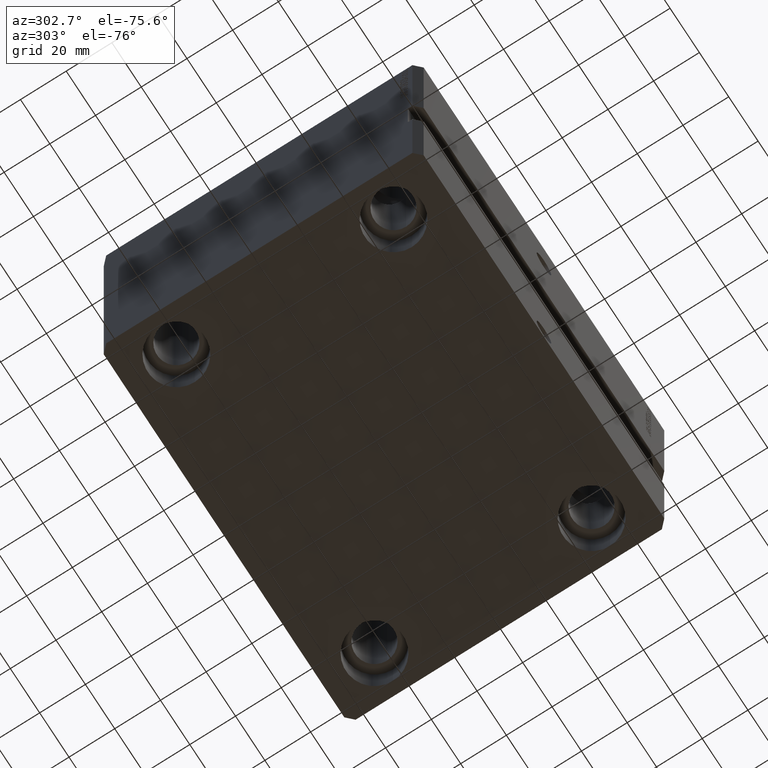
[diagram: clean part render]
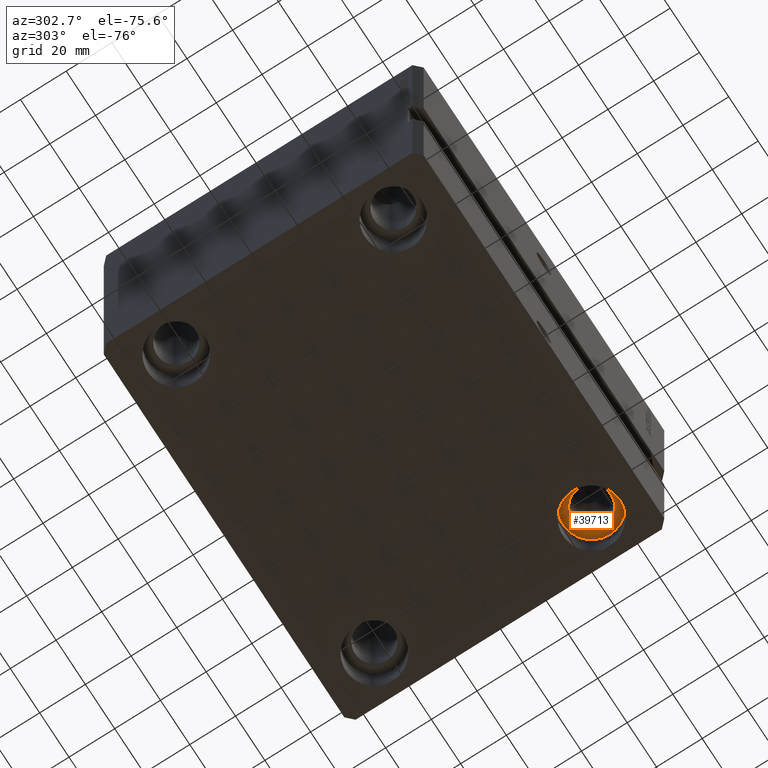
[diagram: same view with one face highlighted and labeled with its STEP entity id]
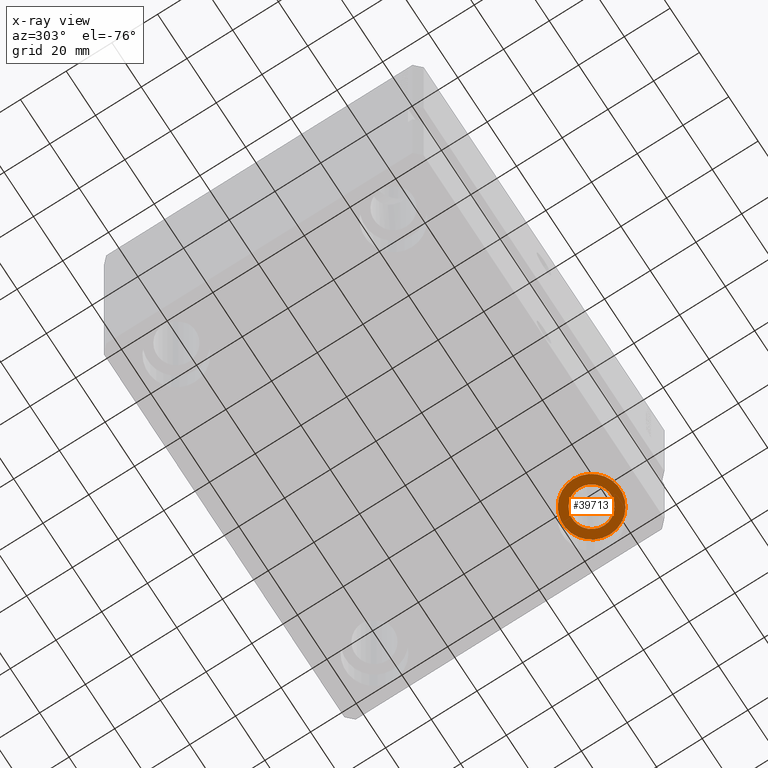
[diagram: x-ray of the same camera — body ghosted, the highlighted face saturated]
A machine part, auxiliary view. The second image highlights one B-rep face of the part: STEP entity #39713.
The next image is the same camera in x-ray: the body ghosted, the highlighted face saturated — about 0% of this face is hidden behind the body in this view.
In plain terms, the highlighted planar face has unit normal (0, 0, -1).
Its self-contained STEP definition (entity closure, byte-faithful):
#1642 = DIRECTION ( 'NONE',  ( 0.000000000000000000, 0.000000000000000000, -1.000000000000000000 ) ) ;
#1998 = AXIS2_PLACEMENT_3D ( 'NONE', #29819, #1642, #36987 ) ;
#3365 = CARTESIAN_POINT ( 'NONE',  ( 80.00000000000000000, -47.50000000000000000, -113.0000000000000000 ) ) ;
#4177 = VERTEX_POINT ( 'NONE', #4906 ) ;
#4906 = CARTESIAN_POINT ( 'NONE',  ( 55.00000000000000711, -47.50000000000000000, -113.0000000000000000 ) ) ;
#4964 = AXIS2_PLACEMENT_3D ( 'NONE', #5495, #30195, #44314 ) ;
#5158 = CARTESIAN_POINT ( 'NONE',  ( 76.00000000000001421, -47.50000000000000000, -113.0000000000000000 ) ) ;
#5495 = CARTESIAN_POINT ( 'NONE',  ( 67.50000000000000000, -47.50000000000000000, -113.0000000000000000 ) ) ;
#5590 = CARTESIAN_POINT ( 'NONE',  ( 67.50000000000000000, -47.50000000000000000, -113.0000000000000000 ) ) ;
#5816 = PLANE ( 'NONE',  #21745 ) ;
#9410 = ORIENTED_EDGE ( 'NONE', *, *, #12893, .F. ) ;
#10485 = ORIENTED_EDGE ( 'NONE', *, *, #44838, .F. ) ;
#11306 = CIRCLE ( 'NONE', #33399, 8.500000000000007105 ) ;
#12893 = EDGE_CURVE ( 'NONE', #24397, #32641, #11306, .T. ) ;
#13797 = CIRCLE ( 'NONE', #26326, 12.49999999999999645 ) ;
#19649 = DIRECTION ( 'NONE',  ( 0.000000000000000000, 0.000000000000000000, -1.000000000000000000 ) ) ;
#21745 = AXIS2_PLACEMENT_3D ( 'NONE', #5590, #19649, #23578 ) ;
#21922 = CIRCLE ( 'NONE', #1998, 8.500000000000007105 ) ;
#23116 = FACE_BOUND ( 'NONE', #39010, .T. ) ;
#23578 = DIRECTION ( 'NONE',  ( 1.000000000000000000, 0.000000000000000000, 0.000000000000000000 ) ) ;
#23905 = EDGE_CURVE ( 'NONE', #4177, #42045, #39674, .T. ) ;
#24397 = VERTEX_POINT ( 'NONE', #5158 ) ;
#26326 = AXIS2_PLACEMENT_3D ( 'NONE', #41864, #27282, #44410 ) ;
#26338 = ORIENTED_EDGE ( 'NONE', *, *, #23905, .F. ) ;
#27282 = DIRECTION ( 'NONE',  ( -0.000000000000000000, -0.000000000000000000, 1.000000000000000000 ) ) ;
#27504 = EDGE_CURVE ( 'NONE', #32641, #24397, #21922, .T. ) ;
#28514 = ORIENTED_EDGE ( 'NONE', *, *, #27504, .F. ) ;
#29819 = CARTESIAN_POINT ( 'NONE',  ( 67.50000000000000000, -47.50000000000000000, -113.0000000000000000 ) ) ;
#30068 = FACE_OUTER_BOUND ( 'NONE', #31250, .T. ) ;
#30195 = DIRECTION ( 'NONE',  ( -0.000000000000000000, -0.000000000000000000, 1.000000000000000000 ) ) ;
#30355 = DIRECTION ( 'NONE',  ( 0.000000000000000000, 0.000000000000000000, -1.000000000000000000 ) ) ;
#31250 = EDGE_LOOP ( 'NONE', ( #26338, #10485 ) ) ;
#32641 = VERTEX_POINT ( 'NONE', #44717 ) ;
#33399 = AXIS2_PLACEMENT_3D ( 'NONE', #37302, #30355, #44471 ) ;
#36987 = DIRECTION ( 'NONE',  ( -1.000000000000000000, 0.000000000000000000, 0.000000000000000000 ) ) ;
#37302 = CARTESIAN_POINT ( 'NONE',  ( 67.50000000000000000, -47.50000000000000000, -113.0000000000000000 ) ) ;
#39010 = EDGE_LOOP ( 'NONE', ( #9410, #28514 ) ) ;
#39674 = CIRCLE ( 'NONE', #4964, 12.49999999999999645 ) ;
#39713 = ADVANCED_FACE ( 'NONE', ( #23116, #30068 ), #5816, .T. ) ;
#41864 = CARTESIAN_POINT ( 'NONE',  ( 67.50000000000000000, -47.50000000000000000, -113.0000000000000000 ) ) ;
#42045 = VERTEX_POINT ( 'NONE', #3365 ) ;
#44314 = DIRECTION ( 'NONE',  ( 1.000000000000000000, 0.000000000000000000, 0.000000000000000000 ) ) ;
#44410 = DIRECTION ( 'NONE',  ( 1.000000000000000000, 0.000000000000000000, 0.000000000000000000 ) ) ;
#44471 = DIRECTION ( 'NONE',  ( -1.000000000000000000, 0.000000000000000000, 0.000000000000000000 ) ) ;
#44717 = CARTESIAN_POINT ( 'NONE',  ( 59.00000000000000000, -47.50000000000000000, -113.0000000000000000 ) ) ;
#44838 = EDGE_CURVE ( 'NONE', #42045, #4177, #13797, .T. ) ;